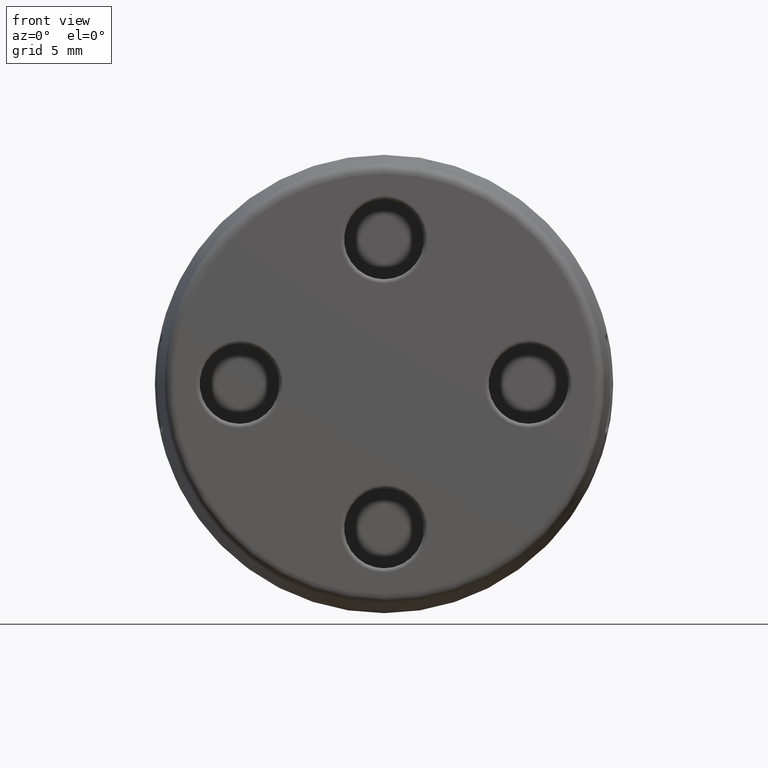
[diagram: clean part render]
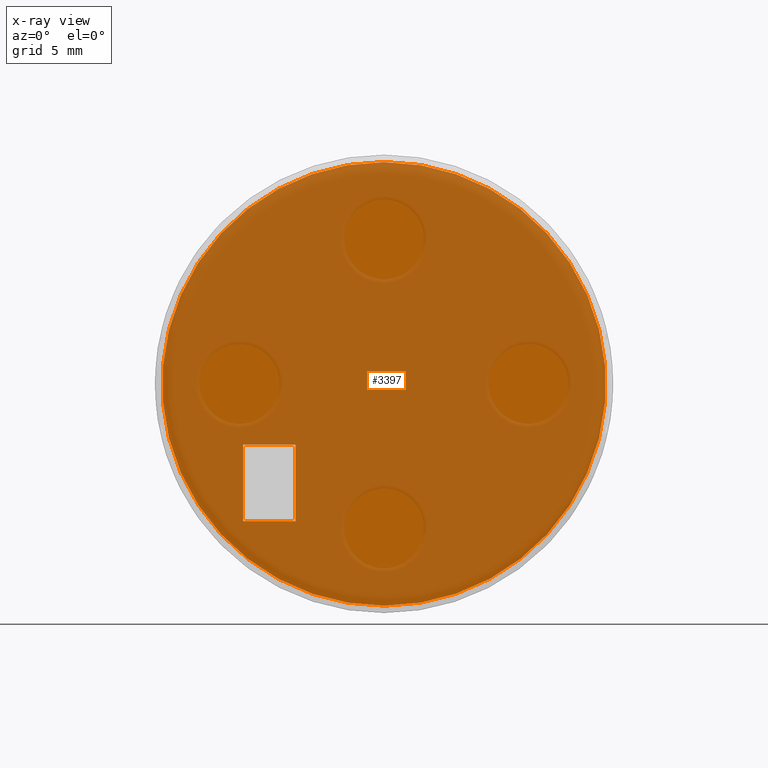
[diagram: x-ray — body ghosted, one internal face saturated and labeled with its STEP entity id]
A machine part, front view, then the same camera in x-ray: the body is ghosted and one INTERNAL B-rep face — a face not visible from any outside direction — is saturated and labeled: STEP entity #3397.
In plain terms, the highlighted planar face has unit normal (0, 1, 0).
Its self-contained STEP definition (entity closure, byte-faithful):
#103 = DIRECTION ( 'NONE',  ( 0.0000000000000000000, 0.0000000000000000000, -1.000000000000000000 ) ) ;
#142 = ORIENTED_EDGE ( 'NONE', *, *, #3144, .T. ) ;
#154 = VERTEX_POINT ( 'NONE', #2953 ) ;
#163 = VERTEX_POINT ( 'NONE', #2960 ) ;
#165 = VERTEX_POINT ( 'NONE', #2957 ) ;
#842 = FACE_BOUND ( 'NONE', #4206, .T. ) ;
#843 = DIRECTION ( 'NONE',  ( 0.0000000000000000000, 1.000000000000000000, 0.0000000000000000000 ) ) ;
#861 = CARTESIAN_POINT ( 'NONE',  ( 11.33458884527398400, 10.49500000000000100, 0.0000000000000000000 ) ) ;
#874 = PLANE ( 'NONE',  #1527 ) ;
#878 = DIRECTION ( 'NONE',  ( 0.0000000000000000000, -0.0000000000000000000, 1.000000000000000000 ) ) ;
#880 = FACE_OUTER_BOUND ( 'NONE', #4247, .T. ) ;
#1380 = CARTESIAN_POINT ( 'NONE',  ( 1.375150103056931900E-015, 10.49500000000000100, -11.12899083090896800 ) ) ;
#1527 = AXIS2_PLACEMENT_3D ( 'NONE', #861, #843, #878 ) ;
#1679 = CARTESIAN_POINT ( 'NONE',  ( 0.0000000000000000000, 10.49500000000000100, 11.12899083090896800 ) ) ;
#1702 = CARTESIAN_POINT ( 'NONE',  ( -4.435060372486532300, 10.49500000000000100, -6.887958643840482500 ) ) ;
#1732 = CARTESIAN_POINT ( 'NONE',  ( -7.072660593848922900, 10.49500000000000100, -3.049430390490215400 ) ) ;
#1734 = LINE ( 'NONE', #1732, #1999 ) ;
#1793 = CIRCLE ( 'NONE', #1795, 11.12899083090896800 ) ;
#1795 = AXIS2_PLACEMENT_3D ( 'NONE', #2836, #2843, #2839 ) ;
#1931 = VECTOR ( 'NONE', #2287, 1000.000000000000000 ) ;
#1948 = VECTOR ( 'NONE', #2399, 1000.000000000000000 ) ;
#1954 = VECTOR ( 'NONE', #2463, 1000.000000000000000 ) ;
#1960 = AXIS2_PLACEMENT_3D ( 'NONE', #2324, #2366, #2381 ) ;
#1971 = CIRCLE ( 'NONE', #1960, 11.12899083090896800 ) ;
#1999 = VECTOR ( 'NONE', #103, 1000.000000000000000 ) ;
#2238 = LINE ( 'NONE', #2239, #1931 ) ;
#2239 = CARTESIAN_POINT ( 'NONE',  ( -4.435060372486532300, 10.49500000000000100, -6.887958643840482500 ) ) ;
#2287 = DIRECTION ( 'NONE',  ( 1.000000000000000000, 0.0000000000000000000, 0.0000000000000000000 ) ) ;
#2324 = CARTESIAN_POINT ( 'NONE',  ( 0.0000000000000000000, 10.49500000000000100, 0.0000000000000000000 ) ) ;
#2366 = DIRECTION ( 'NONE',  ( 0.0000000000000000000, 1.000000000000000000, 0.0000000000000000000 ) ) ;
#2381 = DIRECTION ( 'NONE',  ( 0.0000000000000000000, 0.0000000000000000000, 1.000000000000000000 ) ) ;
#2399 = DIRECTION ( 'NONE',  ( 0.0000000000000000000, 0.0000000000000000000, 1.000000000000000000 ) ) ;
#2432 = LINE ( 'NONE', #2453, #1948 ) ;
#2453 = CARTESIAN_POINT ( 'NONE',  ( -4.435060372486532300, 10.49500000000000100, -3.049430390490215400 ) ) ;
#2463 = DIRECTION ( 'NONE',  ( -1.000000000000000000, 0.0000000000000000000, 0.0000000000000000000 ) ) ;
#2490 = CARTESIAN_POINT ( 'NONE',  ( -4.435060372486532300, 10.49500000000000100, -3.049430390490215400 ) ) ;
#2502 = LINE ( 'NONE', #2490, #1954 ) ;
#2836 = CARTESIAN_POINT ( 'NONE',  ( 0.0000000000000000000, 10.49500000000000100, 0.0000000000000000000 ) ) ;
#2839 = DIRECTION ( 'NONE',  ( 0.0000000000000000000, 0.0000000000000000000, 1.000000000000000000 ) ) ;
#2843 = DIRECTION ( 'NONE',  ( 0.0000000000000000000, 1.000000000000000000, 0.0000000000000000000 ) ) ;
#2953 = CARTESIAN_POINT ( 'NONE',  ( -7.072660593848922900, 10.49500000000000100, -3.049430390490215400 ) ) ;
#2957 = CARTESIAN_POINT ( 'NONE',  ( -7.072660593848922900, 10.49500000000000100, -6.887958643840482500 ) ) ;
#2960 = CARTESIAN_POINT ( 'NONE',  ( -4.435060372486532300, 10.49500000000000100, -3.049430390490215400 ) ) ;
#3066 = EDGE_CURVE ( 'NONE', #3692, #3632, #1793, .T. ) ;
#3144 = EDGE_CURVE ( 'NONE', #165, #3682, #2238, .T. ) ;
#3147 = EDGE_CURVE ( 'NONE', #3632, #3692, #1971, .T. ) ;
#3170 = EDGE_CURVE ( 'NONE', #3682, #163, #2432, .T. ) ;
#3174 = EDGE_CURVE ( 'NONE', #163, #154, #2502, .T. ) ;
#3197 = EDGE_CURVE ( 'NONE', #154, #165, #1734, .T. ) ;
#3397 = ADVANCED_FACE ( 'NONE', ( #842, #880 ), #874, .T. ) ;
#3632 = VERTEX_POINT ( 'NONE', #1380 ) ;
#3682 = VERTEX_POINT ( 'NONE', #1702 ) ;
#3692 = VERTEX_POINT ( 'NONE', #1679 ) ;
#3976 = ORIENTED_EDGE ( 'NONE', *, *, #3197, .T. ) ;
#3978 = ORIENTED_EDGE ( 'NONE', *, *, #3066, .T. ) ;
#3984 = ORIENTED_EDGE ( 'NONE', *, *, #3170, .T. ) ;
#3989 = ORIENTED_EDGE ( 'NONE', *, *, #3174, .T. ) ;
#4014 = ORIENTED_EDGE ( 'NONE', *, *, #3147, .T. ) ;
#4206 = EDGE_LOOP ( 'NONE', ( #3976, #142, #3984, #3989 ) ) ;
#4247 = EDGE_LOOP ( 'NONE', ( #3978, #4014 ) ) ;